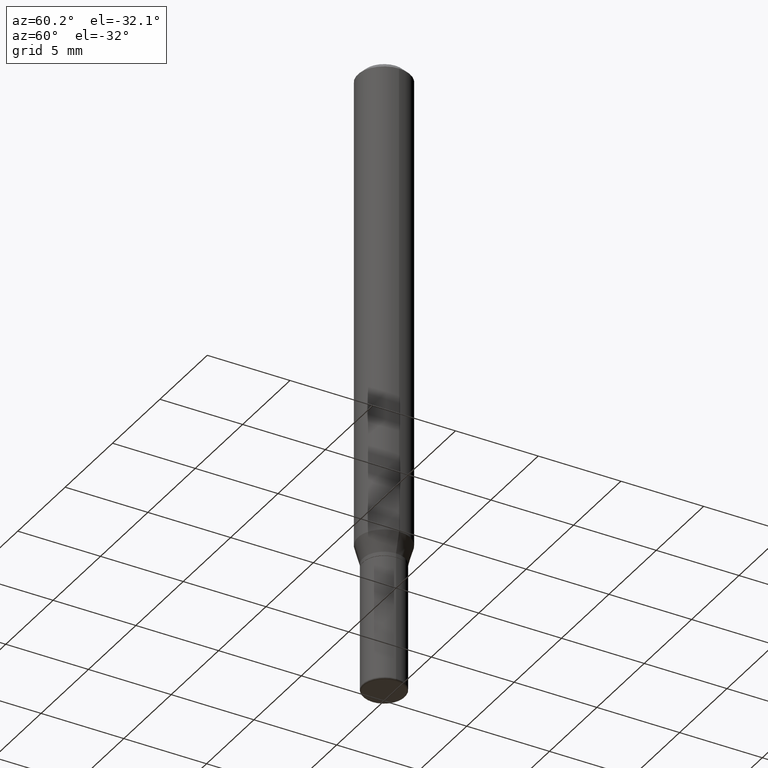
[diagram: clean part render]
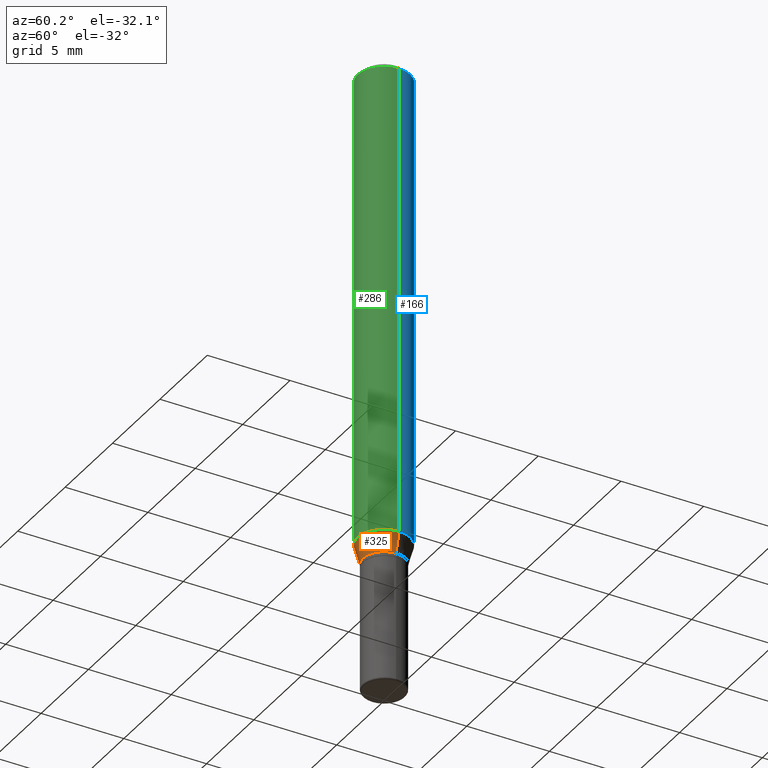
[diagram: same view with three faces highlighted in distinct colors, each labeled with its STEP entity id]
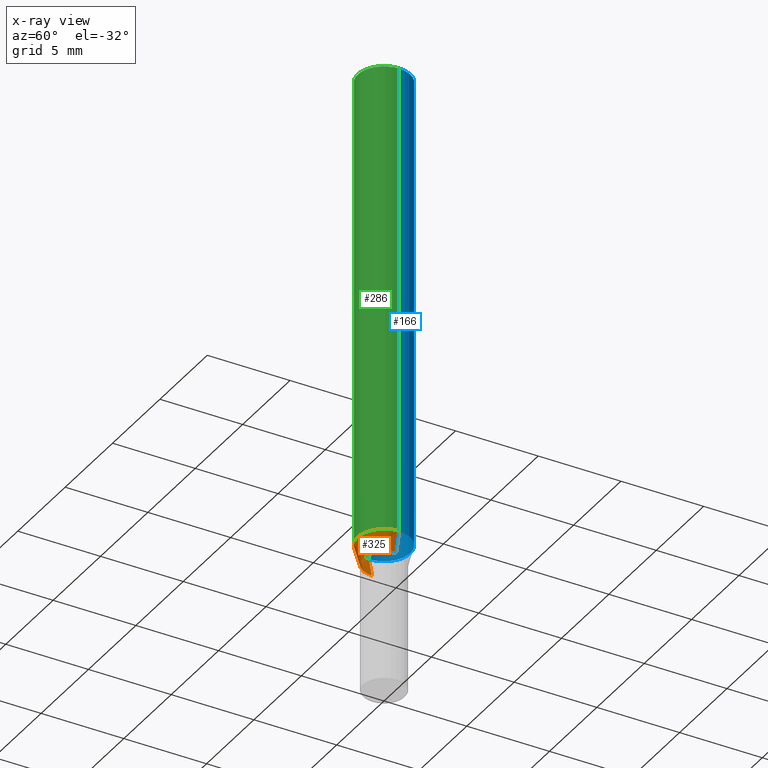
[diagram: x-ray of the same camera — body ghosted, the three highlighted faces saturated]
A machine part, auxiliary view with three faces highlighted in distinct colors.
The next image is the same camera in x-ray (body ghosted, the three faces saturated) — at least one of them is partly hidden behind the body in this view.
Their STEP definitions:

[orange] entity #325 — the highlighted conical surface has half-angle 15 deg.
#5 = FACE_OUTER_BOUND ( 'NONE', #494, .T. ) ;
#15 = DIRECTION ( 'NONE',  ( -0.2588190451025206840, 5.211531920934545520E-15, 0.9659258262890682012 ) ) ;
#46 = DIRECTION ( 'NONE',  ( 1.000000000000000000, -6.982962677686261977E-15, 0.000000000000000000 ) ) ;
#56 = DIRECTION ( 'NONE',  ( -2.445468806185136597E-29, 3.491481338843145583E-15, 1.000000000000000000 ) ) ;
#64 = DIRECTION ( 'NONE',  ( 1.000000000000000000, -6.982962677686261977E-15, 0.000000000000000000 ) ) ;
#74 = CARTESIAN_POINT ( 'NONE',  ( -0.06250000000000000000, -3.547893761495264019E-15, -1.143349364905388743 ) ) ;
#79 = AXIS2_PLACEMENT_3D ( 'NONE', #365, #56, #375 ) ;
#94 = ORIENTED_EDGE ( 'NONE', *, *, #197, .T. ) ;
#98 = CARTESIAN_POINT ( 'NONE',  ( -0.04999999999999994726, -3.673742593419278882E-15, -1.189999999999999947 ) ) ;
#101 = VECTOR ( 'NONE', #15, 39.37007874015748854 ) ;
#155 = EDGE_CURVE ( 'NONE', #414, #222, #391, .T. ) ;
#161 = CARTESIAN_POINT ( 'NONE',  ( 2.910107879360312034E-29, -4.154862793223342577E-15, -1.189999999999999947 ) ) ;
#162 = AXIS2_PLACEMENT_3D ( 'NONE', #500, #301, #64 ) ;
#169 = VERTEX_POINT ( 'NONE', #98 ) ;
#196 = LINE ( 'NONE', #257, #101 ) ;
#197 = EDGE_CURVE ( 'NONE', #169, #423, #495, .T. ) ;
#219 = EDGE_CURVE ( 'NONE', #169, #414, #196, .T. ) ;
#222 = VERTEX_POINT ( 'NONE', #265 ) ;
#251 = DIRECTION ( 'NONE',  ( 0.2588190451025206840, 1.565188264969626504E-15, 0.9659258262890682012 ) ) ;
#257 = CARTESIAN_POINT ( 'NONE',  ( -0.04999999999999994726, -3.799591425343292957E-15, -1.189999999999999947 ) ) ;
#265 = CARTESIAN_POINT ( 'NONE',  ( 0.06250000000000000000, -4.428418138700718304E-15, -1.143349364905388743 ) ) ;
#269 = CONICAL_SURFACE ( 'NONE', #486, 0.04999999999999994726, 0.2617993877991494078 ) ;
#281 = CARTESIAN_POINT ( 'NONE',  ( 0.04999999999999994726, -4.504010927107655912E-15, -1.189999999999999947 ) ) ;
#298 = ORIENTED_EDGE ( 'NONE', *, *, #350, .T. ) ;
#301 = DIRECTION ( 'NONE',  ( -2.445468806185136597E-29, 3.491481338843145583E-15, 1.000000000000000000 ) ) ;
#320 = LINE ( 'NONE', #281, #405 ) ;
#323 = DIRECTION ( 'NONE',  ( -2.445468806185136597E-29, 3.491481338843145583E-15, 1.000000000000000000 ) ) ;
#325 = ADVANCED_FACE ( 'NONE', ( #5 ), #269, .T. ) ;
#348 = ORIENTED_EDGE ( 'NONE', *, *, #219, .F. ) ;
#350 = EDGE_CURVE ( 'NONE', #423, #222, #320, .T. ) ;
#365 = CARTESIAN_POINT ( 'NONE',  ( 2.796025206447715018E-29, -3.991982971345326635E-15, -1.143349364905388743 ) ) ;
#375 = DIRECTION ( 'NONE',  ( 1.000000000000000000, -6.982962677686262766E-15, 0.000000000000000000 ) ) ;
#391 = CIRCLE ( 'NONE', #79, 0.06250000000000000000 ) ;
#405 = VECTOR ( 'NONE', #251, 39.37007874015748854 ) ;
#414 = VERTEX_POINT ( 'NONE', #74 ) ;
#423 = VERTEX_POINT ( 'NONE', #432 ) ;
#432 = CARTESIAN_POINT ( 'NONE',  ( 0.04999999999999994726, -4.504010927107655912E-15, -1.189999999999999947 ) ) ;
#460 = ORIENTED_EDGE ( 'NONE', *, *, #155, .F. ) ;
#486 = AXIS2_PLACEMENT_3D ( 'NONE', #161, #323, #46 ) ;
#494 = EDGE_LOOP ( 'NONE', ( #348, #94, #298, #460 ) ) ;
#495 = CIRCLE ( 'NONE', #162, 0.04999999999999994726 ) ;
#500 = CARTESIAN_POINT ( 'NONE',  ( 2.910107879360312034E-29, -4.154862793223342577E-15, -1.189999999999999947 ) ) ;

[blue] entity #166 — the highlighted cylindrical surface (edge-blend (fillet) strip) has radius 1.5875 mm, axis along (-0, 0, 1).
#2 = VECTOR ( 'NONE', #469, 39.37007874015748143 ) ;
#16 = EDGE_CURVE ( 'NONE', #338, #151, #318, .T. ) ;
#51 = ORIENTED_EDGE ( 'NONE', *, *, #258, .T. ) ;
#60 = AXIS2_PLACEMENT_3D ( 'NONE', #493, #211, #293 ) ;
#62 = ORIENTED_EDGE ( 'NONE', *, *, #110, .T. ) ;
#66 = CARTESIAN_POINT ( 'NONE',  ( 2.796025206447715018E-29, -3.991982971345326635E-15, -1.143349364905388743 ) ) ;
#68 = EDGE_LOOP ( 'NONE', ( #51, #62, #218, #189 ) ) ;
#74 = CARTESIAN_POINT ( 'NONE',  ( -0.06250000000000000000, -3.547893761495264019E-15, -1.143349364905388743 ) ) ;
#110 = EDGE_CURVE ( 'NONE', #414, #151, #209, .T. ) ;
#117 = CARTESIAN_POINT ( 'NONE',  ( 3.668203209277632395E-31, -5.237222008264614861E-17, -0.01499999999999970281 ) ) ;
#125 = CARTESIAN_POINT ( 'NONE',  ( 0.06250000000000000000, -4.888073874380378612E-16, -0.01499999999999970281 ) ) ;
#151 = VERTEX_POINT ( 'NONE', #250 ) ;
#166 = ADVANCED_FACE ( 'NONE', ( #285 ), #207, .T. ) ;
#175 = VECTOR ( 'NONE', #381, 39.37007874015748143 ) ;
#187 = CARTESIAN_POINT ( 'NONE',  ( 0.06250000000000000000, -4.364351673553916694E-16, 3.047610484872459871E-30 ) ) ;
#189 = ORIENTED_EDGE ( 'NONE', *, *, #483, .F. ) ;
#207 = CYLINDRICAL_SURFACE ( 'NONE', #60, 0.06250000000000000000 ) ;
#209 = LINE ( 'NONE', #456, #175 ) ;
#211 = DIRECTION ( 'NONE',  ( -2.445468806185136597E-29, 3.491481338843145583E-15, 1.000000000000000000 ) ) ;
#218 = ORIENTED_EDGE ( 'NONE', *, *, #16, .F. ) ;
#222 = VERTEX_POINT ( 'NONE', #265 ) ;
#250 = CARTESIAN_POINT ( 'NONE',  ( -0.06250000000000000000, -1.578088385863923649E-15, -0.01499999999999970281 ) ) ;
#258 = EDGE_CURVE ( 'NONE', #222, #414, #428, .T. ) ;
#265 = CARTESIAN_POINT ( 'NONE',  ( 0.06250000000000000000, -4.428418138700718304E-15, -1.143349364905388743 ) ) ;
#275 = DIRECTION ( 'NONE',  ( 1.000000000000000000, -6.982962677686266711E-15, 0.000000000000000000 ) ) ;
#285 = FACE_OUTER_BOUND ( 'NONE', #68, .T. ) ;
#293 = DIRECTION ( 'NONE',  ( 1.000000000000000000, -6.982962677686266711E-15, 4.876176775795935793E-29 ) ) ;
#299 = DIRECTION ( 'NONE',  ( -2.445468806185136597E-29, 3.491481338843145583E-15, 1.000000000000000000 ) ) ;
#318 = CIRCLE ( 'NONE', #396, 0.06250000000000000000 ) ;
#326 = AXIS2_PLACEMENT_3D ( 'NONE', #66, #299, #416 ) ;
#338 = VERTEX_POINT ( 'NONE', #125 ) ;
#381 = DIRECTION ( 'NONE',  ( -2.445468806185136877E-29, 3.491481338843145188E-15, 1.000000000000000000 ) ) ;
#382 = LINE ( 'NONE', #187, #2 ) ;
#396 = AXIS2_PLACEMENT_3D ( 'NONE', #117, #509, #275 ) ;
#414 = VERTEX_POINT ( 'NONE', #74 ) ;
#416 = DIRECTION ( 'NONE',  ( 1.000000000000000000, -6.982962677686262766E-15, 0.000000000000000000 ) ) ;
#428 = CIRCLE ( 'NONE', #326, 0.06250000000000000000 ) ;
#456 = CARTESIAN_POINT ( 'NONE',  ( -0.06250000000000000000, 4.440892098500626162E-16, -3.074334431409316114E-30 ) ) ;
#469 = DIRECTION ( 'NONE',  ( -2.445468806185136877E-29, 3.491481338843145188E-15, 1.000000000000000000 ) ) ;
#483 = EDGE_CURVE ( 'NONE', #222, #338, #382, .T. ) ;
#493 = CARTESIAN_POINT ( 'NONE',  ( 0.000000000000000000, 0.000000000000000000, 0.000000000000000000 ) ) ;
#509 = DIRECTION ( 'NONE',  ( -2.445468806185136597E-29, 3.491481338843145583E-15, 1.000000000000000000 ) ) ;

[green] entity #286 — the highlighted cylindrical surface (edge-blend (fillet) strip) has radius 1.5875 mm, axis along (-0, 0, 1).
#2 = VECTOR ( 'NONE', #469, 39.37007874015748143 ) ;
#22 = CARTESIAN_POINT ( 'NONE',  ( 0.000000000000000000, 0.000000000000000000, 0.000000000000000000 ) ) ;
#30 = ORIENTED_EDGE ( 'NONE', *, *, #497, .F. ) ;
#56 = DIRECTION ( 'NONE',  ( -2.445468806185136597E-29, 3.491481338843145583E-15, 1.000000000000000000 ) ) ;
#74 = CARTESIAN_POINT ( 'NONE',  ( -0.06250000000000000000, -3.547893761495264019E-15, -1.143349364905388743 ) ) ;
#79 = AXIS2_PLACEMENT_3D ( 'NONE', #365, #56, #375 ) ;
#110 = EDGE_CURVE ( 'NONE', #414, #151, #209, .T. ) ;
#125 = CARTESIAN_POINT ( 'NONE',  ( 0.06250000000000000000, -4.888073874380378612E-16, -0.01499999999999970281 ) ) ;
#133 = ORIENTED_EDGE ( 'NONE', *, *, #110, .F. ) ;
#145 = DIRECTION ( 'NONE',  ( 1.000000000000000000, -6.982962677686266711E-15, 0.000000000000000000 ) ) ;
#148 = DIRECTION ( 'NONE',  ( -2.445468806185136597E-29, 3.491481338843145583E-15, 1.000000000000000000 ) ) ;
#151 = VERTEX_POINT ( 'NONE', #250 ) ;
#155 = EDGE_CURVE ( 'NONE', #414, #222, #391, .T. ) ;
#175 = VECTOR ( 'NONE', #381, 39.37007874015748143 ) ;
#187 = CARTESIAN_POINT ( 'NONE',  ( 0.06250000000000000000, -4.364351673553916694E-16, 3.047610484872459871E-30 ) ) ;
#209 = LINE ( 'NONE', #456, #175 ) ;
#213 = AXIS2_PLACEMENT_3D ( 'NONE', #22, #472, #337 ) ;
#222 = VERTEX_POINT ( 'NONE', #265 ) ;
#229 = CARTESIAN_POINT ( 'NONE',  ( 3.668203209277632395E-31, -5.237222008264614861E-17, -0.01499999999999970281 ) ) ;
#250 = CARTESIAN_POINT ( 'NONE',  ( -0.06250000000000000000, -1.578088385863923649E-15, -0.01499999999999970281 ) ) ;
#265 = CARTESIAN_POINT ( 'NONE',  ( 0.06250000000000000000, -4.428418138700718304E-15, -1.143349364905388743 ) ) ;
#286 = ADVANCED_FACE ( 'NONE', ( #463 ), #302, .T. ) ;
#302 = CYLINDRICAL_SURFACE ( 'NONE', #213, 0.06250000000000000000 ) ;
#337 = DIRECTION ( 'NONE',  ( 1.000000000000000000, -6.982962677686266711E-15, 4.876176775795935793E-29 ) ) ;
#338 = VERTEX_POINT ( 'NONE', #125 ) ;
#365 = CARTESIAN_POINT ( 'NONE',  ( 2.796025206447715018E-29, -3.991982971345326635E-15, -1.143349364905388743 ) ) ;
#366 = ORIENTED_EDGE ( 'NONE', *, *, #483, .T. ) ;
#375 = DIRECTION ( 'NONE',  ( 1.000000000000000000, -6.982962677686262766E-15, 0.000000000000000000 ) ) ;
#381 = DIRECTION ( 'NONE',  ( -2.445468806185136877E-29, 3.491481338843145188E-15, 1.000000000000000000 ) ) ;
#382 = LINE ( 'NONE', #187, #2 ) ;
#391 = CIRCLE ( 'NONE', #79, 0.06250000000000000000 ) ;
#392 = CIRCLE ( 'NONE', #512, 0.06250000000000000000 ) ;
#414 = VERTEX_POINT ( 'NONE', #74 ) ;
#451 = EDGE_LOOP ( 'NONE', ( #133, #455, #366, #30 ) ) ;
#455 = ORIENTED_EDGE ( 'NONE', *, *, #155, .T. ) ;
#456 = CARTESIAN_POINT ( 'NONE',  ( -0.06250000000000000000, 4.440892098500626162E-16, -3.074334431409316114E-30 ) ) ;
#463 = FACE_OUTER_BOUND ( 'NONE', #451, .T. ) ;
#469 = DIRECTION ( 'NONE',  ( -2.445468806185136877E-29, 3.491481338843145188E-15, 1.000000000000000000 ) ) ;
#472 = DIRECTION ( 'NONE',  ( -2.445468806185136597E-29, 3.491481338843145583E-15, 1.000000000000000000 ) ) ;
#483 = EDGE_CURVE ( 'NONE', #222, #338, #382, .T. ) ;
#497 = EDGE_CURVE ( 'NONE', #151, #338, #392, .T. ) ;
#512 = AXIS2_PLACEMENT_3D ( 'NONE', #229, #148, #145 ) ;